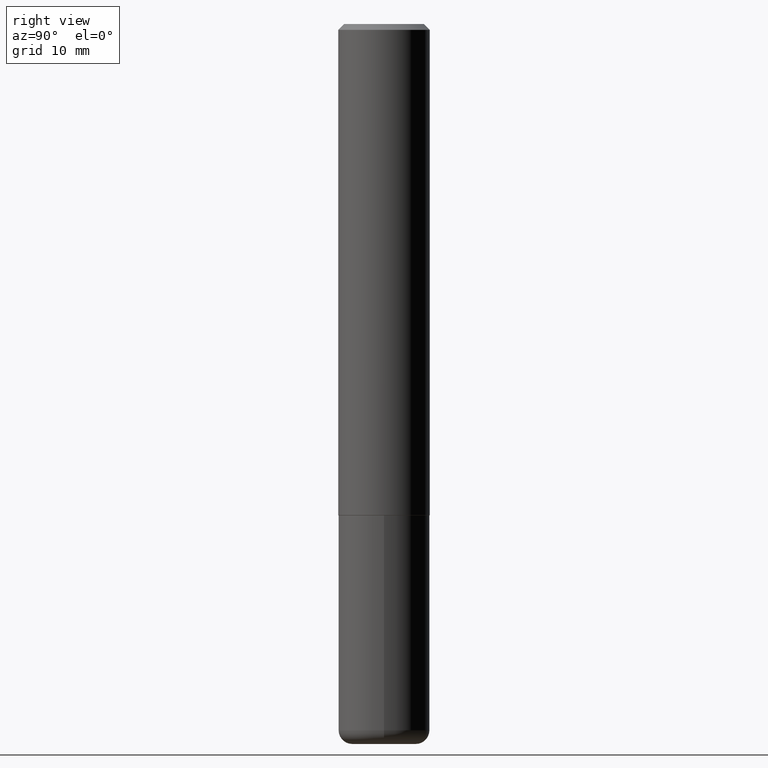
[diagram: clean part render]
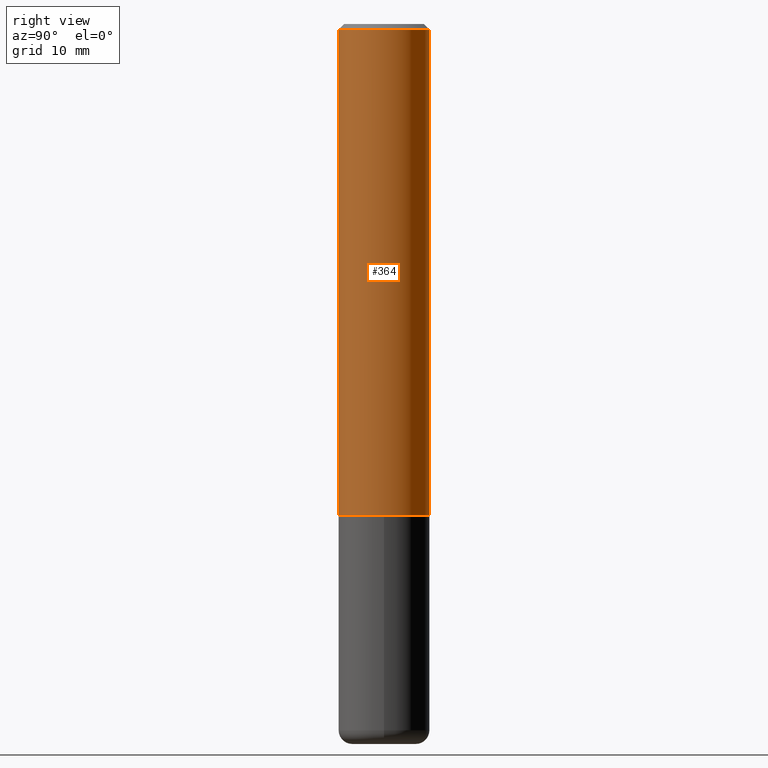
[diagram: same view with one face highlighted and labeled with its STEP entity id]
A machine part, right view. The second image highlights one B-rep face of the part: STEP entity #364.
In plain terms, the highlighted cylindrical surface (partial cylindrical patch) has radius 4.0005 mm, axis along (-0, 0, 1).
Its self-contained STEP definition (entity closure, byte-faithful):
#7 = CARTESIAN_POINT ( 'NONE',  ( -1.099816621735587677E-15, -0.1575000000000001399, 5.491498622301760285E-16 ) ) ;
#10 = EDGE_CURVE ( 'NONE', #171, #101, #342, .T. ) ;
#14 = CARTESIAN_POINT ( 'NONE',  ( 4.897662969233072813E-31, -6.973331583875268020E-17, -0.02000000000000006981 ) ) ;
#22 = VECTOR ( 'NONE', #186, 39.37007874015748143 ) ;
#25 = CARTESIAN_POINT ( 'NONE',  ( -1.099816621735546854E-15, -0.1575000000000061351, -1.691899999999999737 ) ) ;
#36 = DIRECTION ( 'NONE',  ( -6.982962677686265133E-15, -1.000000000000000000, 3.486665791937622522E-15 ) ) ;
#39 = EDGE_CURVE ( 'NONE', #51, #352, #328, .T. ) ;
#45 = EDGE_CURVE ( 'NONE', #171, #51, #210, .T. ) ;
#51 = VERTEX_POINT ( 'NONE', #218 ) ;
#94 = EDGE_CURVE ( 'NONE', #101, #352, #282, .T. ) ;
#101 = VERTEX_POINT ( 'NONE', #216 ) ;
#125 = CARTESIAN_POINT ( 'NONE',  ( 1.119104808822158392E-15, 0.1575000000000001399, -5.491498622301760285E-16 ) ) ;
#130 = CARTESIAN_POINT ( 'NONE',  ( 1.099816621735587480E-15, 0.1574999999999999456, -0.02000000000000061798 ) ) ;
#134 = ORIENTED_EDGE ( 'NONE', *, *, #45, .F. ) ;
#141 = VECTOR ( 'NONE', #247, 39.37007874015748143 ) ;
#153 = DIRECTION ( 'NONE',  ( -6.982962677686264344E-15, -1.000000000000000000, 3.496114991891764787E-15 ) ) ;
#156 = DIRECTION ( 'NONE',  ( -2.448831484616528367E-29, 3.486665791937622522E-15, 1.000000000000000000 ) ) ;
#158 = AXIS2_PLACEMENT_3D ( 'NONE', #14, #394, #153 ) ;
#166 = ORIENTED_EDGE ( 'NONE', *, *, #39, .F. ) ;
#171 = VERTEX_POINT ( 'NONE', #25 ) ;
#179 = ORIENTED_EDGE ( 'NONE', *, *, #94, .T. ) ;
#186 = DIRECTION ( 'NONE',  ( -2.448831484616528086E-29, 3.486665791937622128E-15, 1.000000000000000000 ) ) ;
#201 = CARTESIAN_POINT ( 'NONE',  ( 0.000000000000000000, 0.000000000000000000, 0.000000000000000000 ) ) ;
#210 = LINE ( 'NONE', #7, #22 ) ;
#216 = CARTESIAN_POINT ( 'NONE',  ( 1.119104808822179494E-15, 0.1574999999999943112, -1.691900000000000848 ) ) ;
#218 = CARTESIAN_POINT ( 'NONE',  ( -1.080528434649015779E-15, -0.1575000000000000844, -0.01999999999999951816 ) ) ;
#224 = DIRECTION ( 'NONE',  ( -2.448831484616528367E-29, 3.486665791937622522E-15, 1.000000000000000000 ) ) ;
#232 = AXIS2_PLACEMENT_3D ( 'NONE', #201, #224, #36 ) ;
#247 = DIRECTION ( 'NONE',  ( -2.448831484616528086E-29, 3.486665791937622128E-15, 1.000000000000000000 ) ) ;
#273 = DIRECTION ( 'NONE',  ( -6.982962677686265922E-15, -1.000000000000000000, 3.469013325287948560E-15 ) ) ;
#282 = LINE ( 'NONE', #125, #141 ) ;
#290 = FACE_OUTER_BOUND ( 'NONE', #332, .T. ) ;
#300 = ORIENTED_EDGE ( 'NONE', *, *, #10, .T. ) ;
#328 = CIRCLE ( 'NONE', #158, 0.1575000000000000289 ) ;
#332 = EDGE_LOOP ( 'NONE', ( #300, #179, #166, #134 ) ) ;
#338 = AXIS2_PLACEMENT_3D ( 'NONE', #356, #156, #273 ) ;
#342 = CIRCLE ( 'NONE', #338, 0.1575000000000002232 ) ;
#351 = CYLINDRICAL_SURFACE ( 'NONE', #232, 0.1575000000000001399 ) ;
#352 = VERTEX_POINT ( 'NONE', #130 ) ;
#356 = CARTESIAN_POINT ( 'NONE',  ( 4.143177988822704896E-29, -5.899089853379264171E-15, -1.691900000000000404 ) ) ;
#364 = ADVANCED_FACE ( 'NONE', ( #290 ), #351, .T. ) ;
#394 = DIRECTION ( 'NONE',  ( -2.448831484616528367E-29, 3.486665791937622522E-15, 1.000000000000000000 ) ) ;